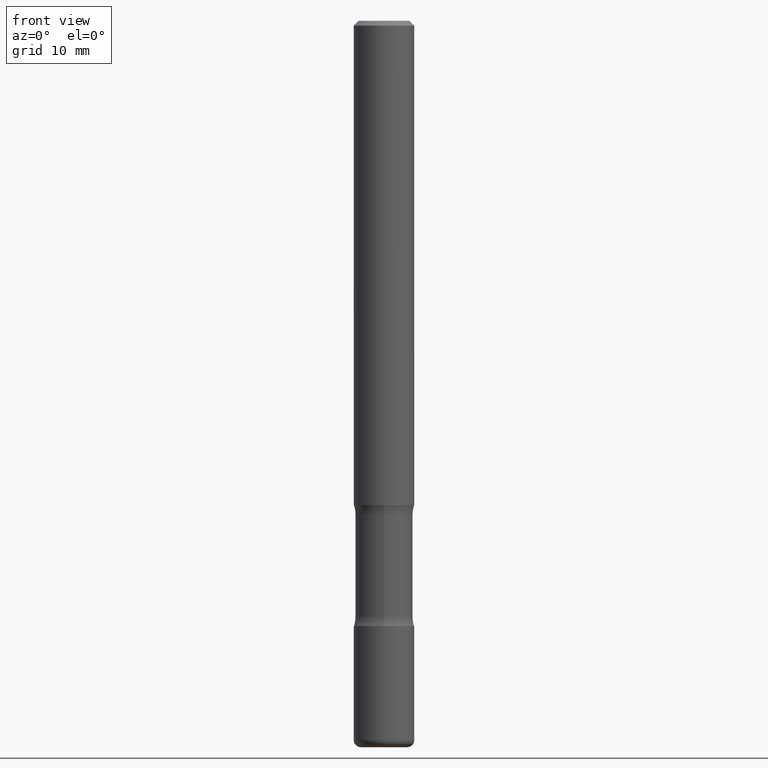
[diagram: clean part render]
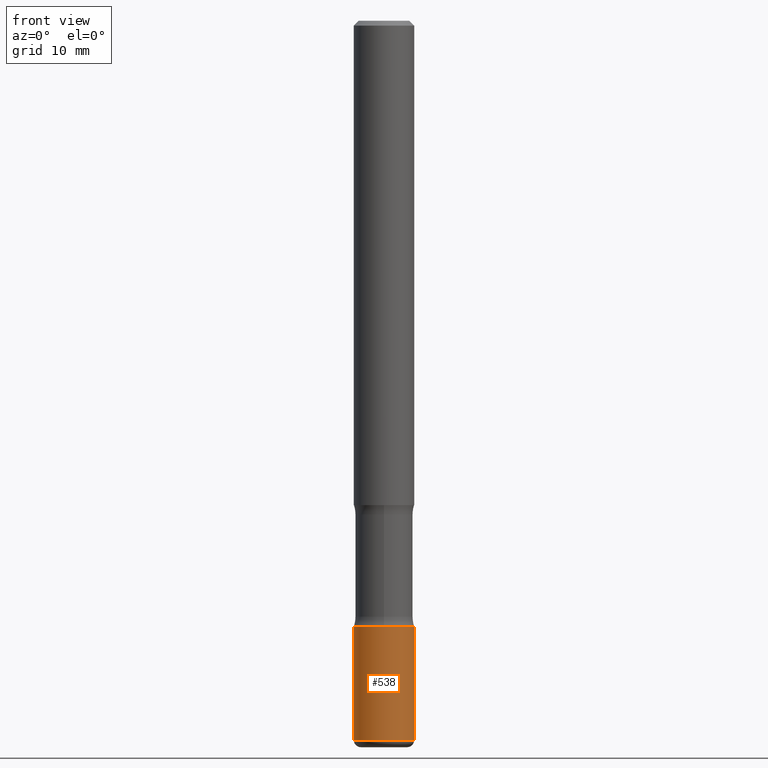
[diagram: same view with one face highlighted and labeled with its STEP entity id]
A machine part, front view. The second image highlights one B-rep face of the part: STEP entity #538.
In plain terms, the highlighted cylindrical surface (edge-blend (fillet) strip) has radius 3.175 mm, axis along (-0, 0, 1).
Its self-contained STEP definition (entity closure, byte-faithful):
#17 = CARTESIAN_POINT ( 'NONE',  ( -0.1250000000000000000, -9.481521156664016174E-15, -2.970000000000000195 ) ) ;
#21 = CARTESIAN_POINT ( 'NONE',  ( 0.1250000000000000555, -9.601573681818646704E-15, -2.499999999999999556 ) ) ;
#46 = EDGE_CURVE ( 'NONE', #62, #167, #178, .T. ) ;
#57 = CARTESIAN_POINT ( 'NONE',  ( 6.113672015462840371E-29, -8.728703347107863365E-15, -2.499999999999999556 ) ) ;
#59 = CARTESIAN_POINT ( 'NONE',  ( 0.1250000000000000000, -1.124256991107492790E-14, -2.970000000000000195 ) ) ;
#62 = VERTEX_POINT ( 'NONE', #17 ) ;
#88 = ORIENTED_EDGE ( 'NONE', *, *, #243, .T. ) ;
#95 = AXIS2_PLACEMENT_3D ( 'NONE', #57, #229, #139 ) ;
#110 = DIRECTION ( 'NONE',  ( -2.445468806185136597E-29, 3.491481338843145583E-15, 1.000000000000000000 ) ) ;
#139 = DIRECTION ( 'NONE',  ( 1.000000000000000000, -6.982962677686267499E-15, 0.000000000000000000 ) ) ;
#145 = VERTEX_POINT ( 'NONE', #430 ) ;
#167 = VERTEX_POINT ( 'NONE', #59 ) ;
#178 = CIRCLE ( 'NONE', #334, 0.1250000000000001388 ) ;
#179 = VECTOR ( 'NONE', #326, 39.37007874015748143 ) ;
#190 = VECTOR ( 'NONE', #244, 39.37007874015748143 ) ;
#204 = LINE ( 'NONE', #418, #190 ) ;
#222 = CARTESIAN_POINT ( 'NONE',  ( 7.263042354369856275E-29, -1.036969957636414298E-14, -2.970000000000000195 ) ) ;
#229 = DIRECTION ( 'NONE',  ( -2.445468806185136597E-29, 3.491481338843145583E-15, 1.000000000000000000 ) ) ;
#243 = EDGE_CURVE ( 'NONE', #167, #273, #204, .T. ) ;
#244 = DIRECTION ( 'NONE',  ( -2.445468806185136877E-29, 3.491481338843145188E-15, 1.000000000000000000 ) ) ;
#256 = EDGE_CURVE ( 'NONE', #145, #273, #463, .T. ) ;
#264 = DIRECTION ( 'NONE',  ( 1.000000000000000000, -6.982962677686270655E-15, 0.000000000000000000 ) ) ;
#267 = DIRECTION ( 'NONE',  ( -2.445468806185136597E-29, 3.491481338843145583E-15, 1.000000000000000000 ) ) ;
#273 = VERTEX_POINT ( 'NONE', #21 ) ;
#281 = DIRECTION ( 'NONE',  ( 1.000000000000000000, -6.982962677686266711E-15, 4.876176775795935232E-29 ) ) ;
#326 = DIRECTION ( 'NONE',  ( -2.445468806185136877E-29, 3.491481338843145188E-15, 1.000000000000000000 ) ) ;
#334 = AXIS2_PLACEMENT_3D ( 'NONE', #222, #267, #264 ) ;
#365 = FACE_OUTER_BOUND ( 'NONE', #452, .T. ) ;
#403 = ORIENTED_EDGE ( 'NONE', *, *, #256, .F. ) ;
#418 = CARTESIAN_POINT ( 'NONE',  ( 0.1250000000000001110, -8.728703347107841277E-16, 6.095220969744924646E-30 ) ) ;
#420 = AXIS2_PLACEMENT_3D ( 'NONE', #547, #110, #281 ) ;
#430 = CARTESIAN_POINT ( 'NONE',  ( -0.1250000000000000555, -8.661023042035876364E-15, -2.499999999999999556 ) ) ;
#444 = ORIENTED_EDGE ( 'NONE', *, *, #46, .T. ) ;
#450 = CARTESIAN_POINT ( 'NONE',  ( -0.1250000000000001110, 8.881784197001260212E-16, -6.148668862818637832E-30 ) ) ;
#452 = EDGE_LOOP ( 'NONE', ( #540, #444, #88, #403 ) ) ;
#463 = CIRCLE ( 'NONE', #95, 0.1250000000000000555 ) ;
#505 = CYLINDRICAL_SURFACE ( 'NONE', #420, 0.1250000000000001110 ) ;
#517 = EDGE_CURVE ( 'NONE', #62, #145, #545, .T. ) ;
#538 = ADVANCED_FACE ( 'NONE', ( #365 ), #505, .T. ) ;
#540 = ORIENTED_EDGE ( 'NONE', *, *, #517, .F. ) ;
#545 = LINE ( 'NONE', #450, #179 ) ;
#547 = CARTESIAN_POINT ( 'NONE',  ( 0.000000000000000000, 0.000000000000000000, 0.000000000000000000 ) ) ;